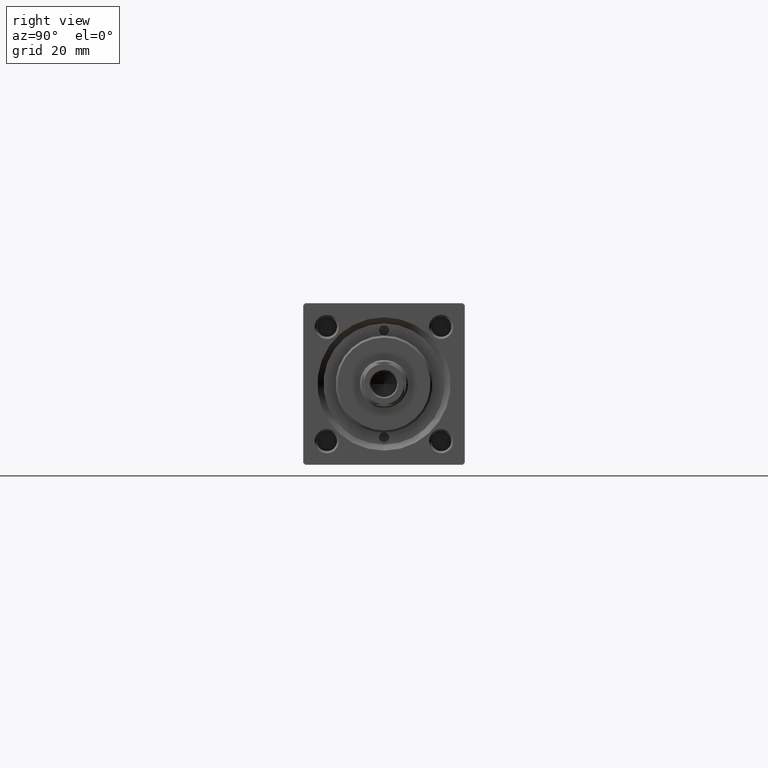
[diagram: clean part render]
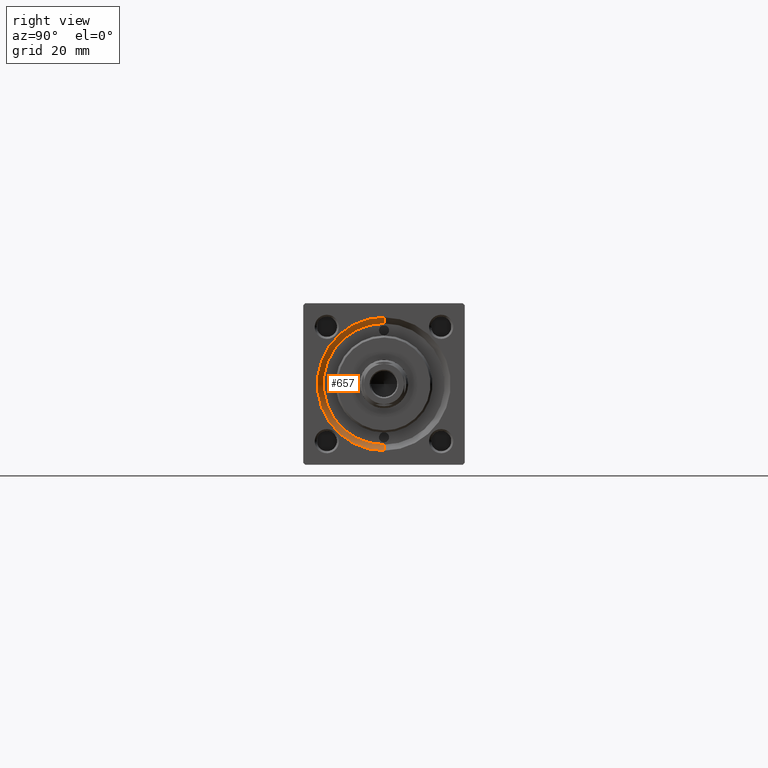
[diagram: same view with one face highlighted and labeled with its STEP entity id]
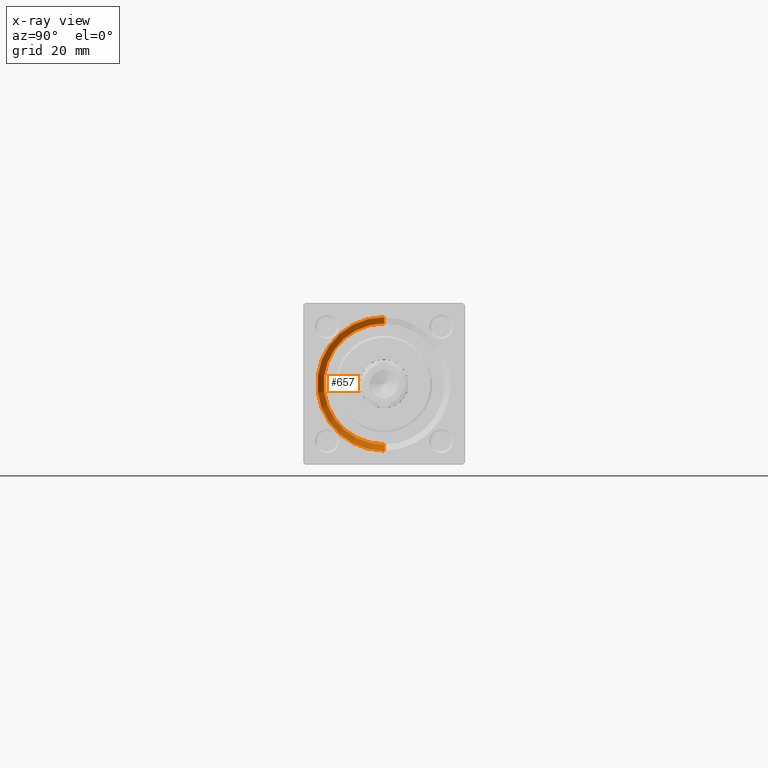
[diagram: x-ray of the same camera — body ghosted, the highlighted face saturated]
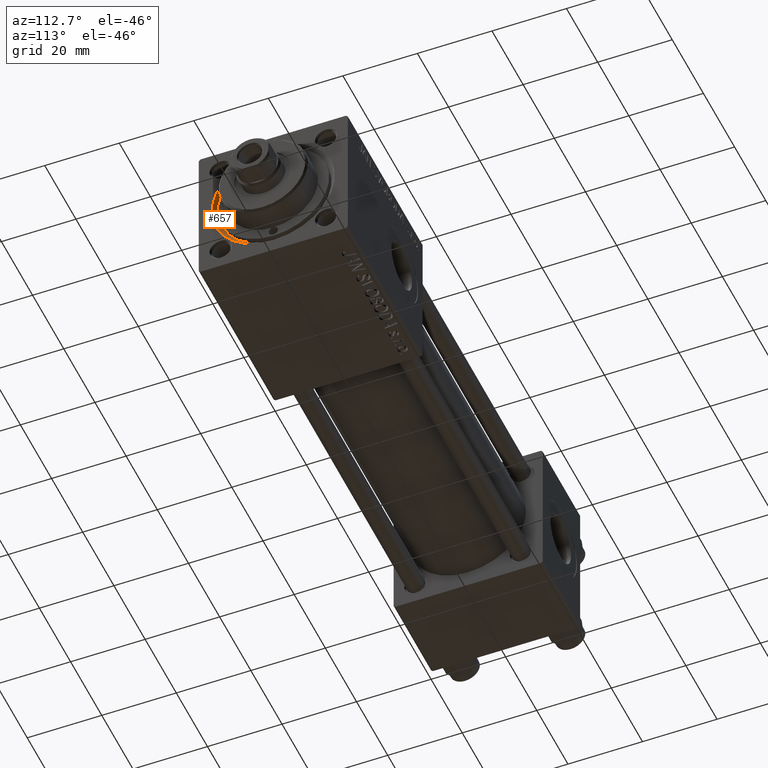
[diagram: same view with one face highlighted and labeled with its STEP entity id]
A machine part, right view. The second image highlights one B-rep face of the part: STEP entity #657.
The next image is the same camera in x-ray: the body ghosted, the highlighted face saturated — about 0% of this face is hidden behind the body in this view.
A second angle (auxiliary view) of the same face is appended — the face is thin or edge-on in the first view.
In plain terms, the highlighted conical surface has half-angle 45 deg.
Its self-contained STEP definition (entity closure, byte-faithful):
#629 = DIRECTION ( 'NONE',  ( 0.000000000000000000, 0.000000000000000000, -1.000000000000000000 ) ) ;
#657 = ADVANCED_FACE ( 'NONE', ( #43066 ), #19583, .F. ) ;
#876 = DIRECTION ( 'NONE',  ( 1.000000000000000000, 0.000000000000000000, 0.000000000000000000 ) ) ;
#914 = DIRECTION ( 'NONE',  ( 1.000000000000000000, 0.000000000000000000, 0.000000000000000000 ) ) ;
#2556 = DIRECTION ( 'NONE',  ( -1.000000000000000000, -0.000000000000000000, -0.000000000000000000 ) ) ;
#3618 = ORIENTED_EDGE ( 'NONE', *, *, #48047, .T. ) ;
#4810 = DIRECTION ( 'NONE',  ( 0.7071067811865507924, 0.000000000000000000, -0.7071067811865441310 ) ) ;
#6120 = DIRECTION ( 'NONE',  ( 0.000000000000000000, 0.000000000000000000, 1.000000000000000000 ) ) ;
#6351 = VERTEX_POINT ( 'NONE', #9487 ) ;
#7001 = CARTESIAN_POINT ( 'NONE',  ( 147.5000000000000284, 1.836970198721029589E-15, 15.00000000000000000 ) ) ;
#7251 = LINE ( 'NONE', #7001, #42824 ) ;
#7619 = LINE ( 'NONE', #47265, #20014 ) ;
#9282 = EDGE_CURVE ( 'NONE', #49674, #49308, #44942, .T. ) ;
#9316 = ORIENTED_EDGE ( 'NONE', *, *, #9282, .F. ) ;
#9487 = CARTESIAN_POINT ( 'NONE',  ( 147.5000000000000284, 1.836970198721029589E-15, 15.00000000000000000 ) ) ;
#15767 = EDGE_LOOP ( 'NONE', ( #42705, #3618, #9316, #50211 ) ) ;
#16722 = VERTEX_POINT ( 'NONE', #36902 ) ;
#17934 = DIRECTION ( 'NONE',  ( 0.7071067811865507924, 8.659560562354892183E-17, 0.7071067811865441310 ) ) ;
#19096 = CIRCLE ( 'NONE', #48320, 15.00000000000000000 ) ;
#19583 = CONICAL_SURFACE ( 'NONE', #24425, 15.00000000000000000, 0.7853981633974437271 ) ;
#20014 = VECTOR ( 'NONE', #4810, 1000.000000000000114 ) ;
#23749 = CARTESIAN_POINT ( 'NONE',  ( 147.5000000000000284, 0.000000000000000000, 0.000000000000000000 ) ) ;
#24425 = AXIS2_PLACEMENT_3D ( 'NONE', #23749, #876, #629 ) ;
#30228 = DIRECTION ( 'NONE',  ( 0.000000000000000000, 0.000000000000000000, 1.000000000000000000 ) ) ;
#30303 = EDGE_CURVE ( 'NONE', #16722, #49674, #7619, .T. ) ;
#36902 = CARTESIAN_POINT ( 'NONE',  ( 147.5000000000000284, 0.000000000000000000, -15.00000000000000000 ) ) ;
#38488 = CARTESIAN_POINT ( 'NONE',  ( 149.0000000000000284, 0.000000000000000000, -16.49999999999998579 ) ) ;
#38901 = CARTESIAN_POINT ( 'NONE',  ( 149.0000000000000284, 2.020667218593131128E-15, 16.49999999999998579 ) ) ;
#41439 = CARTESIAN_POINT ( 'NONE',  ( 149.0000000000000284, 0.000000000000000000, 0.000000000000000000 ) ) ;
#41677 = AXIS2_PLACEMENT_3D ( 'NONE', #41439, #2556, #6120 ) ;
#41963 = EDGE_CURVE ( 'NONE', #6351, #16722, #19096, .T. ) ;
#42705 = ORIENTED_EDGE ( 'NONE', *, *, #41963, .F. ) ;
#42824 = VECTOR ( 'NONE', #17934, 1000.000000000000114 ) ;
#43066 = FACE_OUTER_BOUND ( 'NONE', #15767, .T. ) ;
#44942 = CIRCLE ( 'NONE', #41677, 16.49999999999998579 ) ;
#46944 = CARTESIAN_POINT ( 'NONE',  ( 147.5000000000000284, 0.000000000000000000, 0.000000000000000000 ) ) ;
#47265 = CARTESIAN_POINT ( 'NONE',  ( 147.5000000000000284, 0.000000000000000000, -15.00000000000000000 ) ) ;
#48047 = EDGE_CURVE ( 'NONE', #6351, #49308, #7251, .T. ) ;
#48320 = AXIS2_PLACEMENT_3D ( 'NONE', #46944, #914, #30228 ) ;
#49308 = VERTEX_POINT ( 'NONE', #38901 ) ;
#49674 = VERTEX_POINT ( 'NONE', #38488 ) ;
#50211 = ORIENTED_EDGE ( 'NONE', *, *, #30303, .F. ) ;